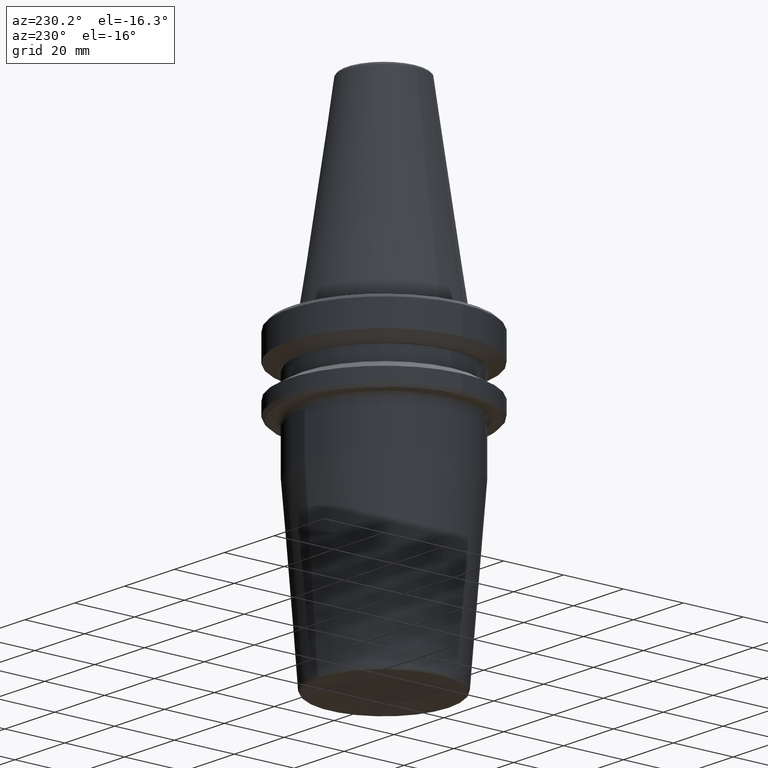
[diagram: clean part render]
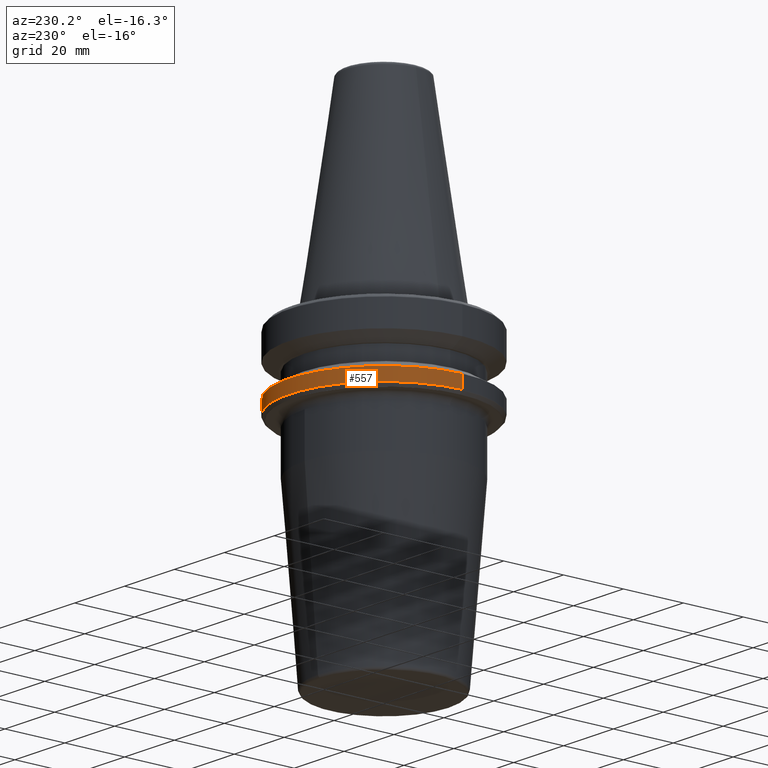
[diagram: same view with one face highlighted and labeled with its STEP entity id]
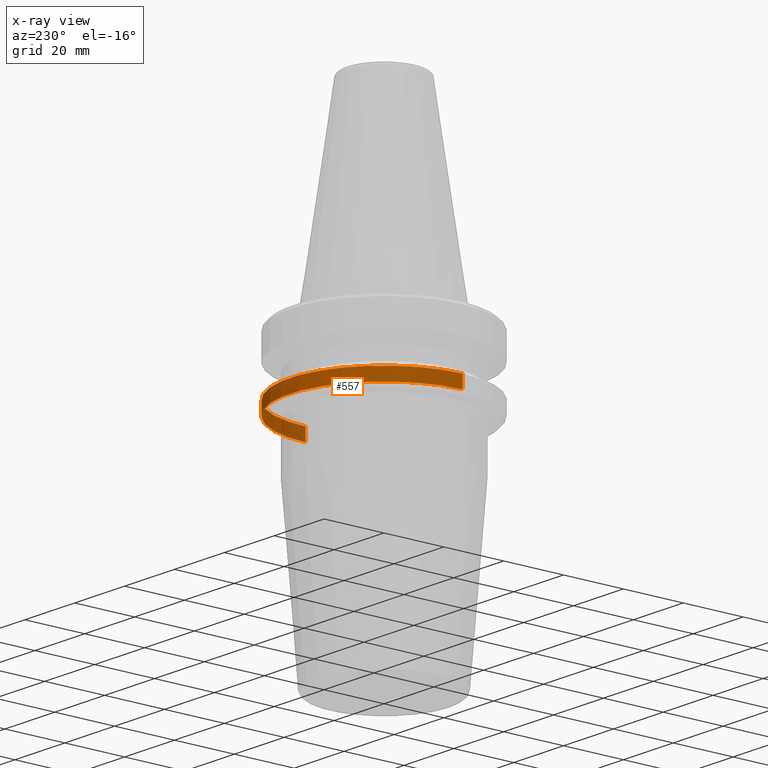
[diagram: x-ray of the same camera — body ghosted, the highlighted face saturated]
A machine part, auxiliary view. The second image highlights one B-rep face of the part: STEP entity #557.
The next image is the same camera in x-ray: the body ghosted, the highlighted face saturated — about 10% of this face is hidden behind the body in this view.
In plain terms, the highlighted cylindrical surface (partial cylindrical patch) has radius 31.5 mm, axis along (-0, -0, 1).
Its self-contained STEP definition (entity closure, byte-faithful):
#5 = EDGE_CURVE ( 'NONE', #294, #24, #503, .T. ) ;
#24 = VERTEX_POINT ( 'NONE', #701 ) ;
#50 = DIRECTION ( 'NONE',  ( -0.0000000000000000000, -0.0000000000000000000, 1.000000000000000000 ) ) ;
#113 = DIRECTION ( 'NONE',  ( 1.000000000000000000, 0.0000000000000000000, 0.0000000000000000000 ) ) ;
#138 = CIRCLE ( 'NONE', #683, 31.50000000000000000 ) ;
#149 = EDGE_LOOP ( 'NONE', ( #690, #818, #972, #1030 ) ) ;
#154 = FACE_OUTER_BOUND ( 'NONE', #149, .T. ) ;
#195 = AXIS2_PLACEMENT_3D ( 'NONE', #525, #50, #113 ) ;
#247 = DIRECTION ( 'NONE',  ( 1.000000000000000000, 0.0000000000000000000, 0.0000000000000000000 ) ) ;
#294 = VERTEX_POINT ( 'NONE', #650 ) ;
#318 = DIRECTION ( 'NONE',  ( 1.000000000000000000, 0.0000000000000000000, 0.0000000000000000000 ) ) ;
#326 = EDGE_CURVE ( 'NONE', #413, #1237, #138, .T. ) ;
#378 = VECTOR ( 'NONE', #1281, 1000.000000000000000 ) ;
#413 = VERTEX_POINT ( 'NONE', #1133 ) ;
#464 = CARTESIAN_POINT ( 'NONE',  ( 0.0000000000000000000, 0.0000000000000000000, 69.75694866325665100 ) ) ;
#472 = AXIS2_PLACEMENT_3D ( 'NONE', #464, #558, #318 ) ;
#503 = CIRCLE ( 'NONE', #195, 31.50000000000000000 ) ;
#525 = CARTESIAN_POINT ( 'NONE',  ( 0.0000000000000000000, 0.0000000000000000000, -21.60014200631675500 ) ) ;
#557 = ADVANCED_FACE ( 'NONE', ( #154 ), #901, .T. ) ;
#558 = DIRECTION ( 'NONE',  ( -0.0000000000000000000, -0.0000000000000000000, 1.000000000000000000 ) ) ;
#580 = EDGE_CURVE ( 'NONE', #413, #294, #627, .T. ) ;
#622 = DIRECTION ( 'NONE',  ( -0.0000000000000000000, -0.0000000000000000000, 1.000000000000000000 ) ) ;
#627 = LINE ( 'NONE', #810, #378 ) ;
#650 = CARTESIAN_POINT ( 'NONE',  ( 31.50000000000000000, 0.0000000000000000000, -21.60014200631675500 ) ) ;
#683 = AXIS2_PLACEMENT_3D ( 'NONE', #936, #622, #247 ) ;
#690 = ORIENTED_EDGE ( 'NONE', *, *, #326, .T. ) ;
#695 = VECTOR ( 'NONE', #1149, 1000.000000000000000 ) ;
#701 = CARTESIAN_POINT ( 'NONE',  ( -31.50000000000000000, 3.857637417314162700E-015, -21.60014200631675500 ) ) ;
#728 = LINE ( 'NONE', #831, #695 ) ;
#810 = CARTESIAN_POINT ( 'NONE',  ( 31.50000000000000000, 0.0000000000000000000, 69.75694866325665100 ) ) ;
#818 = ORIENTED_EDGE ( 'NONE', *, *, #992, .T. ) ;
#831 = CARTESIAN_POINT ( 'NONE',  ( -31.50000000000000000, 3.857637417314162700E-015, 69.75694866325665100 ) ) ;
#901 = CYLINDRICAL_SURFACE ( 'NONE', #472, 31.50000000000000000 ) ;
#936 = CARTESIAN_POINT ( 'NONE',  ( 0.0000000000000000000, 0.0000000000000000000, -25.83431457505076900 ) ) ;
#972 = ORIENTED_EDGE ( 'NONE', *, *, #5, .F. ) ;
#992 = EDGE_CURVE ( 'NONE', #1237, #24, #728, .T. ) ;
#1030 = ORIENTED_EDGE ( 'NONE', *, *, #580, .F. ) ;
#1084 = CARTESIAN_POINT ( 'NONE',  ( -31.50000000000000000, 3.857637417314162700E-015, -25.83431457505076900 ) ) ;
#1133 = CARTESIAN_POINT ( 'NONE',  ( 31.50000000000000000, 0.0000000000000000000, -25.83431457505076900 ) ) ;
#1149 = DIRECTION ( 'NONE',  ( -0.0000000000000000000, -0.0000000000000000000, 1.000000000000000000 ) ) ;
#1237 = VERTEX_POINT ( 'NONE', #1084 ) ;
#1281 = DIRECTION ( 'NONE',  ( -0.0000000000000000000, -0.0000000000000000000, 1.000000000000000000 ) ) ;